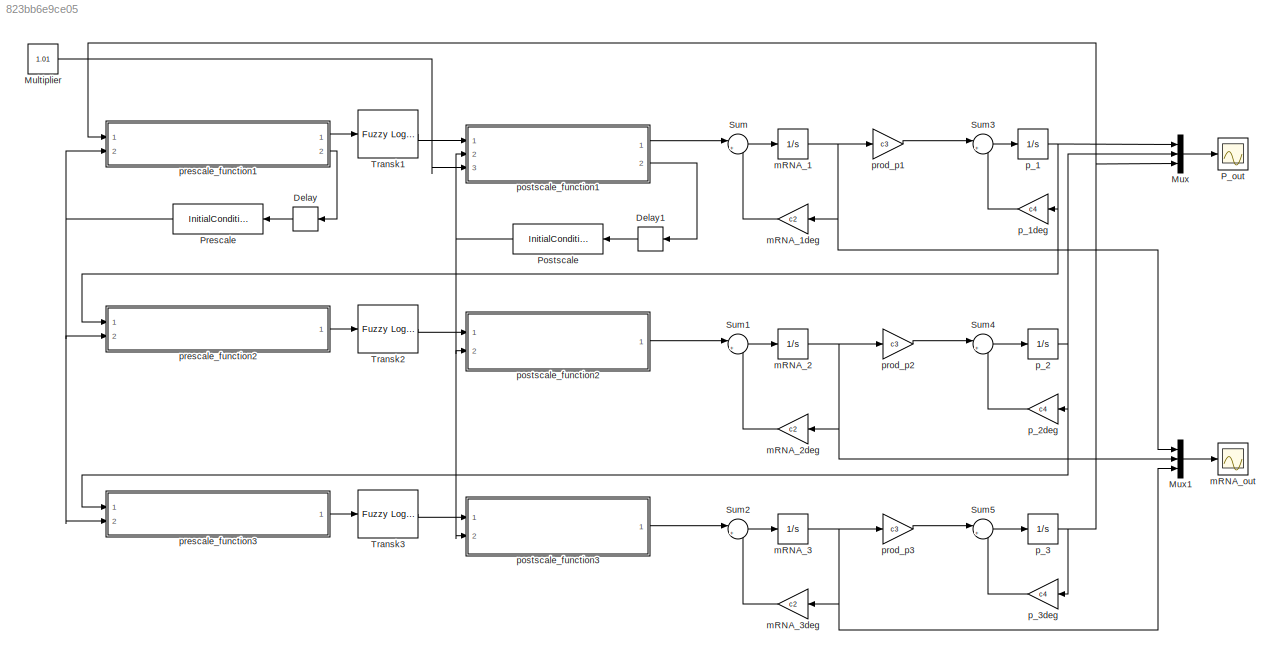
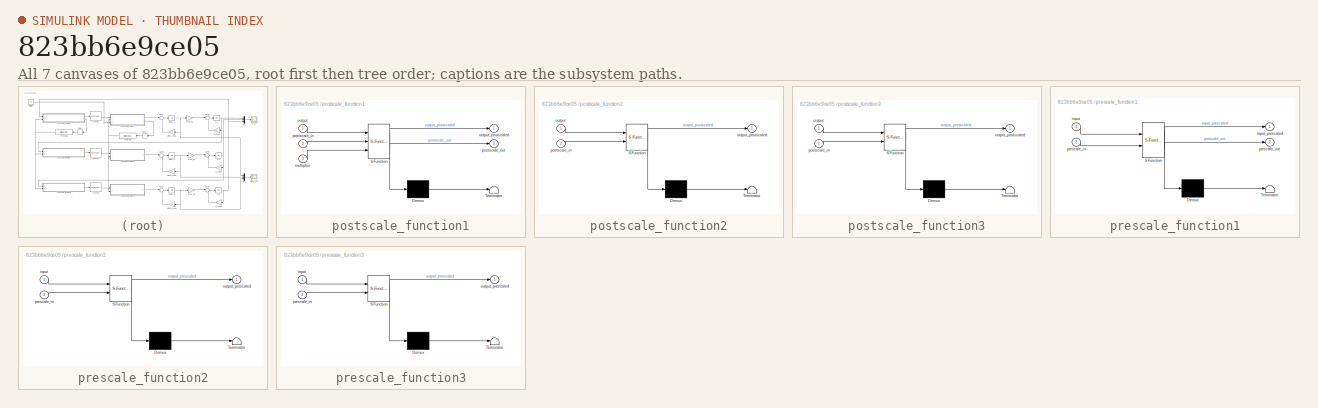
[diagram: thumbnail index - all 7 canvases of the model, root first then tree order]
MODEL slx_823bb6e9ce05
KIND model
BLOCK [Delay] Delay
  DelayLength = 1
  InitialCondition = 1
  InputPortMap = u0
  Ports = [1, 1]
BLOCK [Delay] Delay1
  DelayLength = 1
  InitialCondition = 1
  InputPortMap = u0
  Ports = [1, 1]
BLOCK [Constant] Multiplier
  Value = 1.01
BLOCK [Mux] Mux
  DisplayOption = bar
  Inputs = 3
  Ports = [3, 1]
BLOCK [Mux] Mux1
  DisplayOption = bar
  Inputs = 3
  Ports = [3, 1]
BLOCK [Scope] P_out
  Floating = off
  LimitDataPoints = off
  NumInputPorts = 1
  Ports = [1]
  SampleTime = 0
  SaveName = P_out
  SaveToWorkspace = on
  ShowLegends = off
  YMax = 1800
  YMin = 0
  ZoomMode = xonly
BLOCK [InitialCondition] Postscale
BLOCK [InitialCondition] Prescale
BLOCK [Sum] Sum
  IconShape = round
  InputSameDT = off
  Inputs = |+-
  OutDataTypeStr = Inherit: Inherit via internal rule
  Ports = [2, 1]
  SaturateOnIntegerOverflow = off
BLOCK [Sum] Sum1
  IconShape = round
  InputSameDT = off
  Inputs = |+-
  OutDataTypeStr = Inherit: Inherit via internal rule
  Ports = [2, 1]
  SaturateOnIntegerOverflow = off
BLOCK [Sum] Sum2
  IconShape = round
  InputSameDT = off
  Inputs = |+-
  OutDataTypeStr = Inherit: Inherit via internal rule
  Ports = [2, 1]
  SaturateOnIntegerOverflow = off
BLOCK [Sum] Sum3
  IconShape = round
  InputSameDT = off
  Inputs = |+-
  OutDataTypeStr = Inherit: Inherit via internal rule
  Ports = [2, 1]
  SaturateOnIntegerOverflow = off
BLOCK [Sum] Sum4
  IconShape = round
  InputSameDT = off
  Inputs = |+-
  OutDataTypeStr = Inherit: Inherit via internal rule
  Ports = [2, 1]
  SaturateOnIntegerOverflow = off
BLOCK [Sum] Sum5
  IconShape = round
  InputSameDT = off
  Inputs = |+-
  OutDataTypeStr = Inherit: Inherit via internal rule
  Ports = [2, 1]
  SaturateOnIntegerOverflow = off
BLOCK [Reference] Transk1  REF=fuzblock/Fuzzy Logic   (lib defined in mdl_858b3b3e7478)
Controller
  Ports = [1, 1]
  SourceBlock = fuzblock/Fuzzy Logic \nController
  SourceType = FIS
  fis = Transk
BLOCK [Reference] Transk2  REF=fuzblock/Fuzzy Logic   (lib defined in mdl_858b3b3e7478)
Controller
  Ports = [1, 1]
  SourceBlock = fuzblock/Fuzzy Logic \nController
  SourceType = FIS
  fis = Transk
BLOCK [Reference] Transk3  REF=fuzblock/Fuzzy Logic   (lib defined in mdl_858b3b3e7478)
Controller
  Ports = [1, 1]
  SourceBlock = fuzblock/Fuzzy Logic \nController
  SourceType = FIS
  fis = Transk
BLOCK [Integrator] mRNA_1
  InitialCondition = mRNA_init + 0.5
  LimitOutput = on
  LowerSaturationLimit = 0
  Ports = [1, 1]
BLOCK [Gain] mRNA_1deg
  Gain = c2
  OutDataTypeStr = Inherit: Inherit via internal rule
  ParamDataTypeStr = Inherit: Inherit via internal rule
  SaturateOnIntegerOverflow = off
BLOCK [Integrator] mRNA_2
  InitialCondition = mRNA_init
  LimitOutput = on
  LowerSaturationLimit = 0
  Ports = [1, 1]
BLOCK [Gain] mRNA_2deg
  Gain = c2
  OutDataTypeStr = Inherit: Inherit via internal rule
  ParamDataTypeStr = Inherit: Inherit via internal rule
  SaturateOnIntegerOverflow = off
BLOCK [Integrator] mRNA_3
  InitialCondition = mRNA_init
  LimitOutput = on
  LowerSaturationLimit = 0
  Ports = [1, 1]
BLOCK [Gain] mRNA_3deg
  Gain = c2
  OutDataTypeStr = Inherit: Inherit via internal rule
  ParamDataTypeStr = Inherit: Inherit via internal rule
  SaturateOnIntegerOverflow = off
BLOCK [Scope] mRNA_out
  Floating = off
  LimitDataPoints = off
  NumInputPorts = 1
  Ports = [1]
  SampleTime = 0
  SaveName = mRNA_out
  SaveToWorkspace = on
  ShowLegends = off
  ZoomMode = xonly
BLOCK [Integrator] p_1
  LimitOutput = on
  LowerSaturationLimit = 0
  Ports = [1, 1]
BLOCK [Gain] p_1deg
  Gain = c4
  OutDataTypeStr = Inherit: Inherit via internal rule
  ParamDataTypeStr = Inherit: Inherit via internal rule
  SaturateOnIntegerOverflow = off
BLOCK [Integrator] p_2
  LimitOutput = on
  LowerSaturationLimit = 0
  Ports = [1, 1]
BLOCK [Gain] p_2deg
  Gain = c4
  OutDataTypeStr = Inherit: Inherit via internal rule
  ParamDataTypeStr = Inherit: Inherit via internal rule
  SaturateOnIntegerOverflow = off
BLOCK [Integrator] p_3
  LimitOutput = on
  LowerSaturationLimit = 0
  Ports = [1, 1]
BLOCK [Gain] p_3deg
  Gain = c4
  OutDataTypeStr = Inherit: Inherit via internal rule
  ParamDataTypeStr = Inherit: Inherit via internal rule
  SaturateOnIntegerOverflow = off
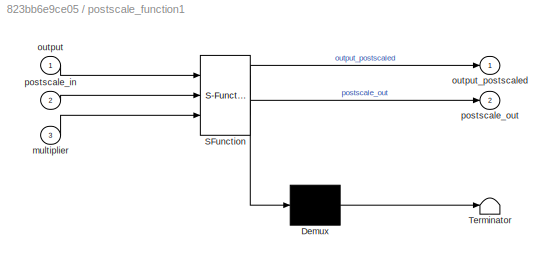
BLOCK [SubSystem] postscale_function1
  ErrorFcn = Stateflow.Translate.translate
  FunctionWithSeparateData = off
  MaskHideContents = off
  MinAlgLoopOccurrences = off
  Opaque = off
  PermitHierarchicalResolution = ExplicitOnly
  Ports = [3, 2]
  PropExecContextOutsideSubsystem = off
  RTWSystemCode = Auto
  RequestExecContextInheritance = off
  SFBlockType = MATLAB Function
  TreatAsAtomicUnit = on
BLOCK [Demux] postscale_function1/ Demux 
  Outputs = 1
  Ports = [1, 1]
BLOCK [S-Function] postscale_function1/ SFunction 
  EnableBusSupport = on
  FunctionName = sf_sfun
  PortCounts = [3 3]
  Ports = [3, 3]
  Tag = Stateflow S-Function strelkowa_rep3_FLtransk 4
BLOCK [Terminator] postscale_function1/ Terminator 
BLOCK [Inport] postscale_function1/multiplier
  IconDisplay = Port number
  Port = 3
BLOCK [Inport] postscale_function1/output
  IconDisplay = Port number
BLOCK [Outport] postscale_function1/output_postscaled
  IconDisplay = Port number
BLOCK [Inport] postscale_function1/postscale_in
  IconDisplay = Port number
  Port = 2
BLOCK [Outport] postscale_function1/postscale_out
  IconDisplay = Port number
  Port = 2
BLOCK [SubSystem] postscale_function2
  ErrorFcn = Stateflow.Translate.translate
  FunctionWithSeparateData = off
  MaskHideContents = off
  MinAlgLoopOccurrences = off
  Opaque = off
  PermitHierarchicalResolution = ExplicitOnly
  Ports = [2, 1]
  PropExecContextOutsideSubsystem = off
  RTWSystemCode = Auto
  RequestExecContextInheritance = off
  SFBlockType = MATLAB Function
  TreatAsAtomicUnit = on
BLOCK [Demux] postscale_function2/ Demux 
  Outputs = 1
  Ports = [1, 1]
BLOCK [S-Function] postscale_function2/ SFunction 
  EnableBusSupport = on
  FunctionName = sf_sfun
  PortCounts = [2 2]
  Ports = [2, 2]
  Tag = Stateflow S-Function strelkowa_rep3_FLtransk 5
BLOCK [Terminator] postscale_function2/ Terminator 
BLOCK [Inport] postscale_function2/output
  IconDisplay = Port number
BLOCK [Outport] postscale_function2/output_postscaled
  IconDisplay = Port number
BLOCK [Inport] postscale_function2/postscale_in
  IconDisplay = Port number
  Port = 2
BLOCK [SubSystem] postscale_function3
  ErrorFcn = Stateflow.Translate.translate
  FunctionWithSeparateData = off
  MaskHideContents = off
  MinAlgLoopOccurrences = off
  Opaque = off
  PermitHierarchicalResolution = ExplicitOnly
  Ports = [2, 1]
  PropExecContextOutsideSubsystem = off
  RTWSystemCode = Auto
  RequestExecContextInheritance = off
  SFBlockType = MATLAB Function
  TreatAsAtomicUnit = on
BLOCK [Demux] postscale_function3/ Demux 
  Outputs = 1
  Ports = [1, 1]
BLOCK [S-Function] postscale_function3/ SFunction 
  EnableBusSupport = on
  FunctionName = sf_sfun
  PortCounts = [2 2]
  Ports = [2, 2]
  Tag = Stateflow S-Function strelkowa_rep3_FLtransk 6
BLOCK [Terminator] postscale_function3/ Terminator 
BLOCK [Inport] postscale_function3/output
  IconDisplay = Port number
BLOCK [Outport] postscale_function3/output_postscaled
  IconDisplay = Port number
BLOCK [Inport] postscale_function3/postscale_in
  IconDisplay = Port number
  Port = 2
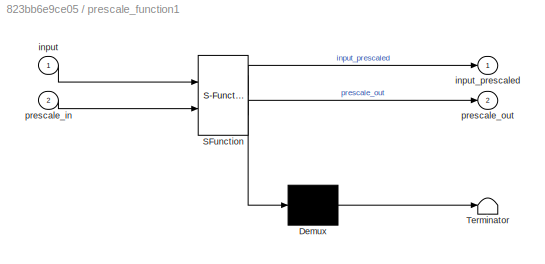
BLOCK [SubSystem] prescale_function1
  ErrorFcn = Stateflow.Translate.translate
  FunctionWithSeparateData = off
  MaskHideContents = off
  MinAlgLoopOccurrences = off
  Opaque = off
  PermitHierarchicalResolution = ExplicitOnly
  Ports = [2, 2]
  PropExecContextOutsideSubsystem = off
  RTWSystemCode = Auto
  RequestExecContextInheritance = off
  SFBlockType = MATLAB Function
  TreatAsAtomicUnit = on
BLOCK [Demux] prescale_function1/ Demux 
  Outputs = 1
  Ports = [1, 1]
BLOCK [S-Function] prescale_function1/ SFunction 
  EnableBusSupport = on
  FunctionName = sf_sfun
  PortCounts = [2 3]
  Ports = [2, 3]
  Tag = Stateflow S-Function strelkowa_rep3_FLtransk 2
BLOCK [Terminator] prescale_function1/ Terminator 
BLOCK [Inport] prescale_function1/input
  IconDisplay = Port number
BLOCK [Outport] prescale_function1/input_prescaled
  IconDisplay = Port number
BLOCK [Inport] prescale_function1/prescale_in
  IconDisplay = Port number
  Port = 2
BLOCK [Outport] prescale_function1/prescale_out
  IconDisplay = Port number
  Port = 2
BLOCK [SubSystem] prescale_function2
  ErrorFcn = Stateflow.Translate.translate
  FunctionWithSeparateData = off
  MaskHideContents = off
  MinAlgLoopOccurrences = off
  Opaque = off
  PermitHierarchicalResolution = ExplicitOnly
  Ports = [2, 1]
  PropExecContextOutsideSubsystem = off
  RTWSystemCode = Auto
  RequestExecContextInheritance = off
  SFBlockType = MATLAB Function
  TreatAsAtomicUnit = on
BLOCK [Demux] prescale_function2/ Demux 
  Outputs = 1
  Ports = [1, 1]
BLOCK [S-Function] prescale_function2/ SFunction 
  EnableBusSupport = on
  FunctionName = sf_sfun
  PortCounts = [2 2]
  Ports = [2, 2]
  Tag = Stateflow S-Function strelkowa_rep3_FLtransk 1
BLOCK [Terminator] prescale_function2/ Terminator 
BLOCK [Inport] prescale_function2/input
  IconDisplay = Port number
BLOCK [Outport] prescale_function2/output_prescaled
  IconDisplay = Port number
BLOCK [Inport] prescale_function2/prescale_in
  IconDisplay = Port number
  Port = 2
BLOCK [SubSystem] prescale_function3
  ErrorFcn = Stateflow.Translate.translate
  FunctionWithSeparateData = off
  MaskHideContents = off
  MinAlgLoopOccurrences = off
  Opaque = off
  PermitHierarchicalResolution = ExplicitOnly
  Ports = [2, 1]
  PropExecContextOutsideSubsystem = off
  RTWSystemCode = Auto
  RequestExecContextInheritance = off
  SFBlockType = MATLAB Function
  TreatAsAtomicUnit = on
BLOCK [Demux] prescale_function3/ Demux 
  Outputs = 1
  Ports = [1, 1]
BLOCK [S-Function] prescale_function3/ SFunction 
  EnableBusSupport = on
  FunctionName = sf_sfun
  PortCounts = [2 2]
  Ports = [2, 2]
  Tag = Stateflow S-Function strelkowa_rep3_FLtransk 3
BLOCK [Terminator] prescale_function3/ Terminator 
BLOCK [Inport] prescale_function3/input
  IconDisplay = Port number
BLOCK [Outport] prescale_function3/output_prescaled
  IconDisplay = Port number
BLOCK [Inport] prescale_function3/prescale_in
  IconDisplay = Port number
  Port = 2
BLOCK [Gain] prod_p1
  Gain = c3
  OutDataTypeStr = Inherit: Inherit via internal rule
  ParamDataTypeStr = Inherit: Inherit via internal rule
  SaturateOnIntegerOverflow = off
BLOCK [Gain] prod_p2
  Gain = c3
  OutDataTypeStr = Inherit: Inherit via internal rule
  ParamDataTypeStr = Inherit: Inherit via internal rule
  SaturateOnIntegerOverflow = off
BLOCK [Gain] prod_p3
  Gain = c3
  OutDataTypeStr = Inherit: Inherit via internal rule
  ParamDataTypeStr = Inherit: Inherit via internal rule
  SaturateOnIntegerOverflow = off
LINE Delay1:1 -> Postscale:1
LINE Delay:1 -> Prescale:1
LINE Multiplier:1 -> postscale_function1:3
LINE Mux1:1 -> mRNA_out:1
LINE Mux:1 -> P_out:1
NET Postscale:1 -> postscale_function1:2, postscale_function2:2, postscale_function3:2
NET Prescale:1 -> prescale_function1:2, prescale_function2:2, prescale_function3:2
LINE Sum1:1 -> mRNA_2:1
LINE Sum2:1 -> mRNA_3:1
LINE Sum3:1 -> p_1:1
LINE Sum4:1 -> p_2:1
LINE Sum5:1 -> p_3:1
LINE Sum:1 -> mRNA_1:1
LINE Transk1:1 -> postscale_function1:1
LINE Transk2:1 -> postscale_function2:1
LINE Transk3:1 -> postscale_function3:1
NET mRNA_1:1 -> Mux1:1, mRNA_1deg:1, prod_p1:1
LINE mRNA_1deg:1 -> Sum:2
NET mRNA_2:1 -> Mux1:2, mRNA_2deg:1, prod_p2:1
LINE mRNA_2deg:1 -> Sum1:2
NET mRNA_3:1 -> Mux1:3, mRNA_3deg:1, prod_p3:1
LINE mRNA_3deg:1 -> Sum2:2
NET p_1:1 -> Mux:1, p_1deg:1, prescale_function2:1
LINE p_1deg:1 -> Sum3:2
NET p_2:1 -> Mux:2, p_2deg:1, prescale_function3:1
LINE p_2deg:1 -> Sum4:2
NET p_3:1 -> Mux:3, p_3deg:1, prescale_function1:1
LINE p_3deg:1 -> Sum5:2
LINE postscale_function1:1 -> Sum:1
LINE postscale_function1:2 -> Delay1:1
LINE postscale_function2:1 -> Sum1:1
LINE postscale_function3:1 -> Sum2:1
LINE prescale_function1:1 -> Transk1:1
LINE prescale_function1:2 -> Delay:1
LINE prescale_function2:1 -> Transk2:1
LINE prescale_function3:1 -> Transk3:1
LINE prod_p1:1 -> Sum3:1
LINE prod_p2:1 -> Sum4:1
LINE prod_p3:1 -> Sum5:1
note: NET lines group one-source signal fan-out (src -> all destinations, sorted); 1:1 wires keep LINE
